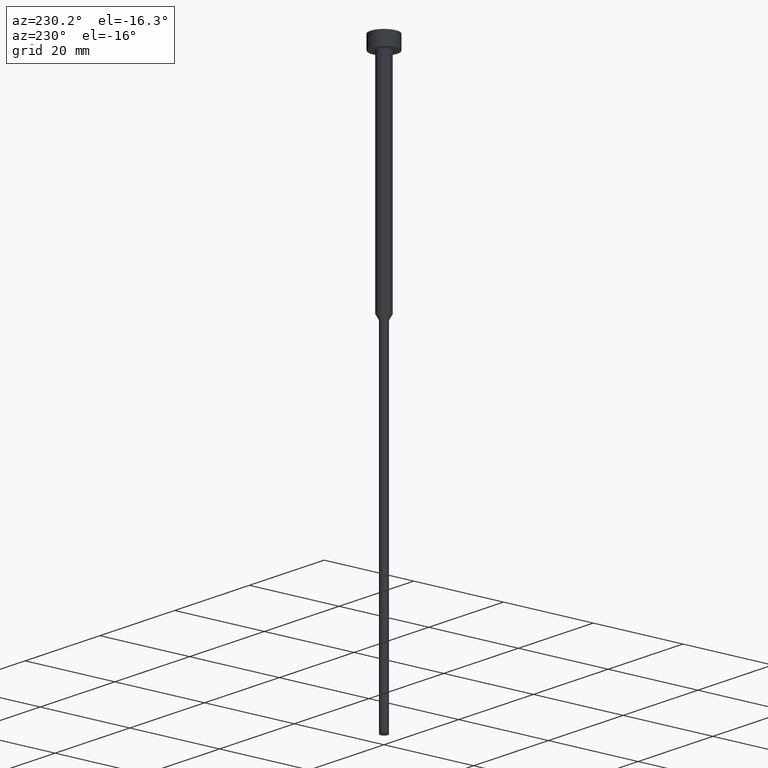
[diagram: clean part render]
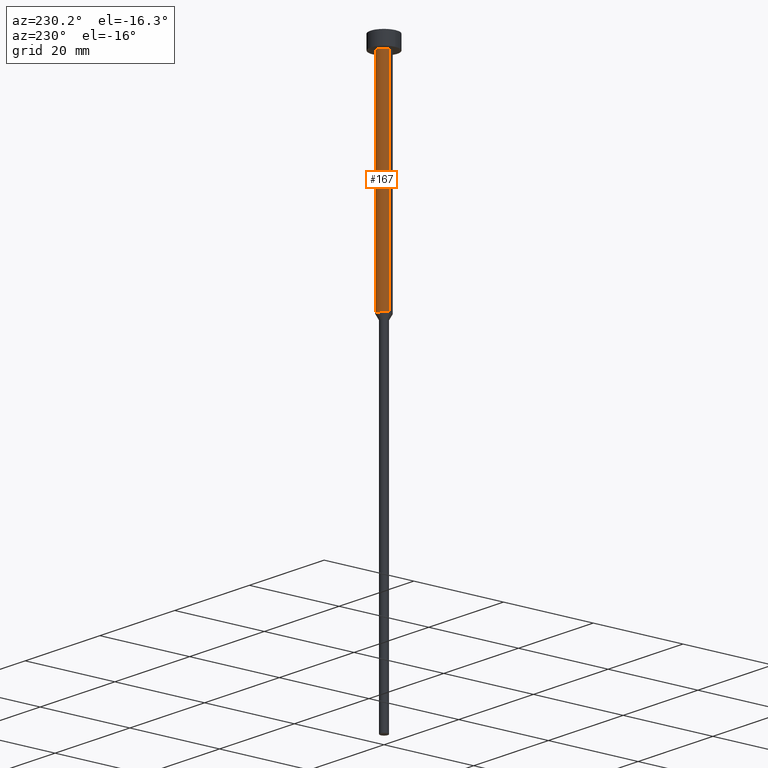
[diagram: same view with one face highlighted and labeled with its STEP entity id]
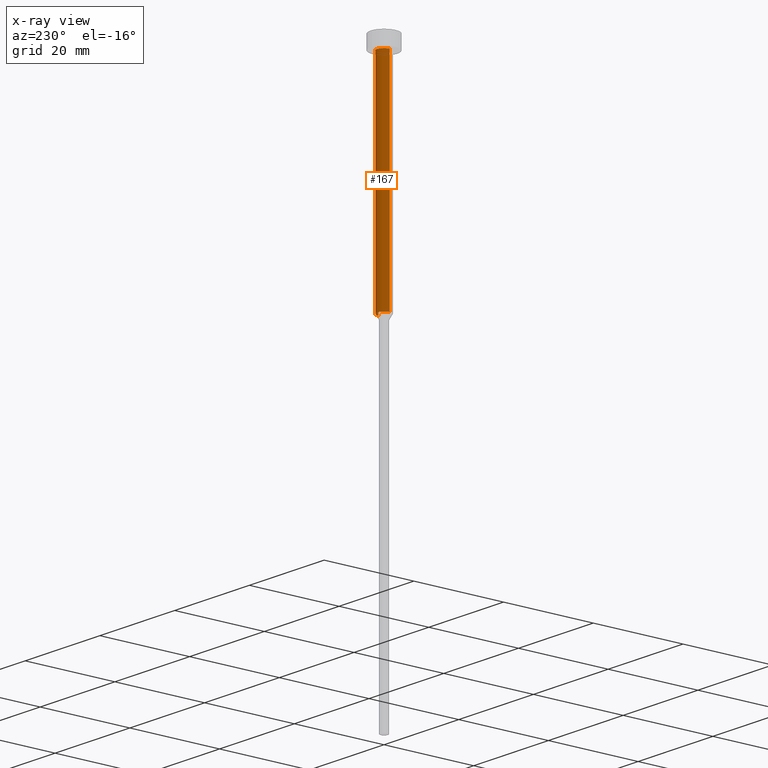
[diagram: x-ray of the same camera — body ghosted, the highlighted face saturated]
A machine part, auxiliary view. The second image highlights one B-rep face of the part: STEP entity #167.
The next image is the same camera in x-ray: the body ghosted, the highlighted face saturated — about 0% of this face is hidden behind the body in this view.
In plain terms, the highlighted cylindrical surface (edge-blend (fillet) strip) has radius 1.5 mm, axis along (-0, -0, 1).
Its self-contained STEP definition (entity closure, byte-faithful):
#8 = EDGE_LOOP ( 'NONE', ( #153, #11, #180, #253 ) ) ;
#11 = ORIENTED_EDGE ( 'NONE', *, *, #79, .T. ) ;
#16 = VERTEX_POINT ( 'NONE', #311 ) ;
#19 = CYLINDRICAL_SURFACE ( 'NONE', #165, 1.500000000000000000 ) ;
#26 = DIRECTION ( 'NONE',  ( -0.000000000000000000, -0.000000000000000000, 1.000000000000000000 ) ) ;
#35 = AXIS2_PLACEMENT_3D ( 'NONE', #161, #26, #297 ) ;
#50 = FACE_OUTER_BOUND ( 'NONE', #8, .T. ) ;
#54 = CARTESIAN_POINT ( 'NONE',  ( 0.000000000000000000, 0.000000000000000000, -50.00000000000000000 ) ) ;
#57 = AXIS2_PLACEMENT_3D ( 'NONE', #54, #185, #210 ) ;
#59 = CARTESIAN_POINT ( 'NONE',  ( -1.500000000000000000, 1.836970198721029934E-16, -3.000000000000000888 ) ) ;
#77 = LINE ( 'NONE', #294, #274 ) ;
#79 = EDGE_CURVE ( 'NONE', #16, #313, #77, .T. ) ;
#92 = CARTESIAN_POINT ( 'NONE',  ( 1.500000000000000000, 0.000000000000000000, -3.000000000000000888 ) ) ;
#117 = CARTESIAN_POINT ( 'NONE',  ( 1.500000000000000000, 0.000000000000000000, -50.00000000000000000 ) ) ;
#150 = EDGE_CURVE ( 'NONE', #197, #16, #296, .T. ) ;
#153 = ORIENTED_EDGE ( 'NONE', *, *, #150, .T. ) ;
#161 = CARTESIAN_POINT ( 'NONE',  ( 0.000000000000000000, 0.000000000000000000, -3.000000000000000888 ) ) ;
#162 = EDGE_CURVE ( 'NONE', #332, #313, #302, .T. ) ;
#165 = AXIS2_PLACEMENT_3D ( 'NONE', #273, #344, #269 ) ;
#167 = ADVANCED_FACE ( 'NONE', ( #50 ), #19, .T. ) ;
#169 = DIRECTION ( 'NONE',  ( -0.000000000000000000, -0.000000000000000000, 1.000000000000000000 ) ) ;
#180 = ORIENTED_EDGE ( 'NONE', *, *, #162, .F. ) ;
#185 = DIRECTION ( 'NONE',  ( -0.000000000000000000, -0.000000000000000000, 1.000000000000000000 ) ) ;
#189 = VECTOR ( 'NONE', #169, 1000.000000000000000 ) ;
#197 = VERTEX_POINT ( 'NONE', #117 ) ;
#210 = DIRECTION ( 'NONE',  ( 1.000000000000000000, 0.000000000000000000, 0.000000000000000000 ) ) ;
#216 = LINE ( 'NONE', #275, #189 ) ;
#253 = ORIENTED_EDGE ( 'NONE', *, *, #303, .F. ) ;
#269 = DIRECTION ( 'NONE',  ( 1.000000000000000000, 0.000000000000000000, 0.000000000000000000 ) ) ;
#273 = CARTESIAN_POINT ( 'NONE',  ( 0.000000000000000000, 0.000000000000000000, 0.000000000000000000 ) ) ;
#274 = VECTOR ( 'NONE', #350, 1000.000000000000000 ) ;
#275 = CARTESIAN_POINT ( 'NONE',  ( 1.500000000000000000, 0.000000000000000000, 0.000000000000000000 ) ) ;
#294 = CARTESIAN_POINT ( 'NONE',  ( -1.500000000000000000, 1.836970198721029934E-16, 0.000000000000000000 ) ) ;
#296 = CIRCLE ( 'NONE', #57, 1.500000000000000000 ) ;
#297 = DIRECTION ( 'NONE',  ( 1.000000000000000000, 0.000000000000000000, 0.000000000000000000 ) ) ;
#302 = CIRCLE ( 'NONE', #35, 1.500000000000000000 ) ;
#303 = EDGE_CURVE ( 'NONE', #197, #332, #216, .T. ) ;
#311 = CARTESIAN_POINT ( 'NONE',  ( -1.500000000000000000, 1.836970198721029934E-16, -50.00000000000000000 ) ) ;
#313 = VERTEX_POINT ( 'NONE', #59 ) ;
#332 = VERTEX_POINT ( 'NONE', #92 ) ;
#344 = DIRECTION ( 'NONE',  ( -0.000000000000000000, -0.000000000000000000, 1.000000000000000000 ) ) ;
#350 = DIRECTION ( 'NONE',  ( -0.000000000000000000, -0.000000000000000000, 1.000000000000000000 ) ) ;